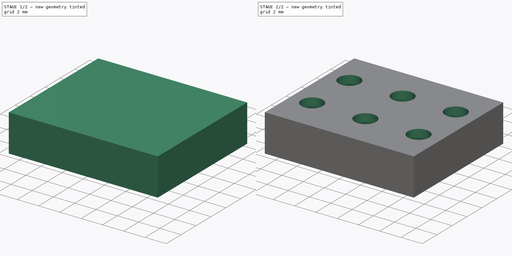
[diagram: build sequence overview — one tinted view per stage of 2, left to right]
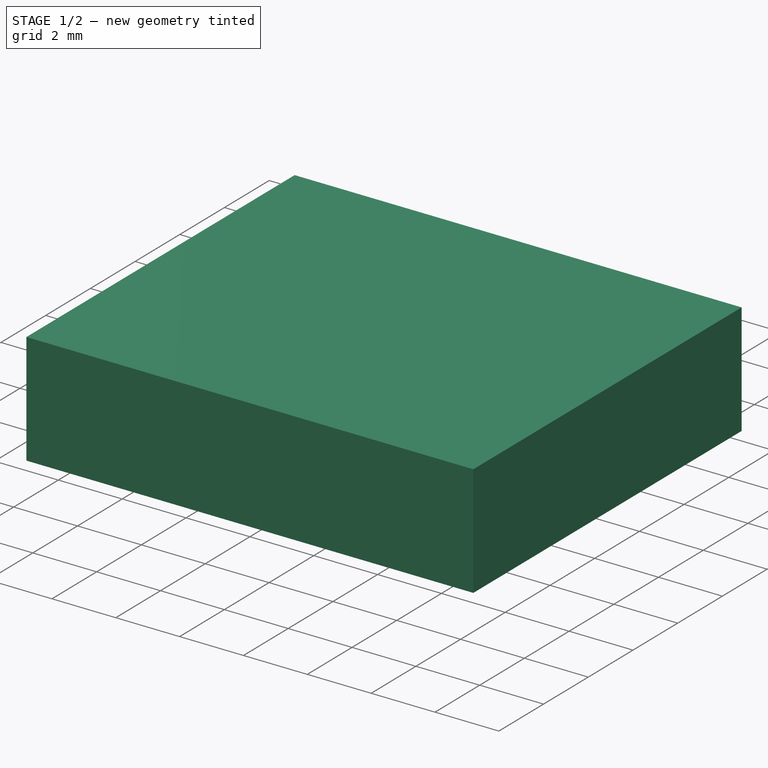
[diagram: stage 1 of 2 — iso view after this stage's code; geometry added in this stage tinted green]
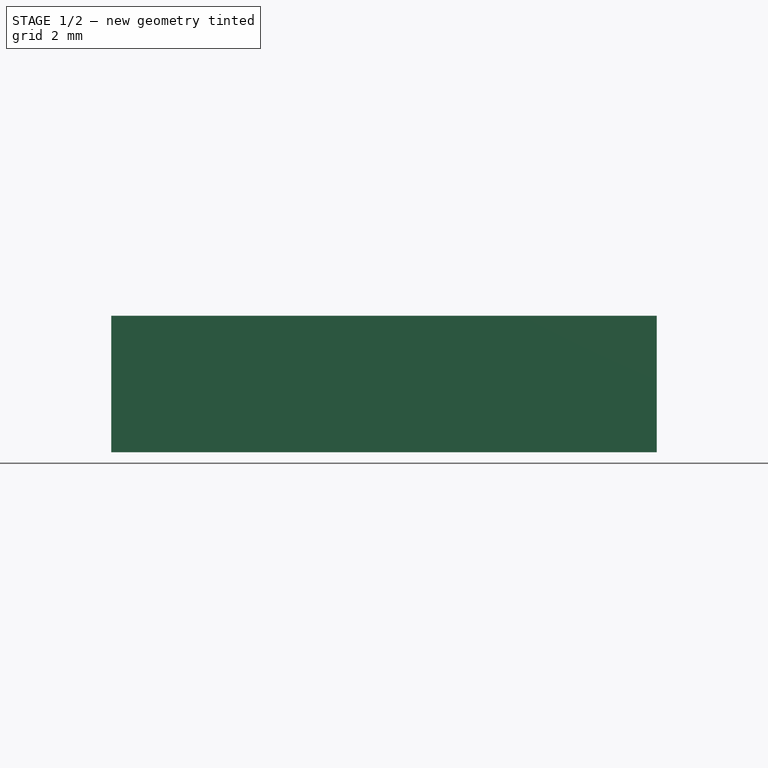
[diagram: stage 1 of 2 — front view after this stage's code; geometry added in this stage tinted green]
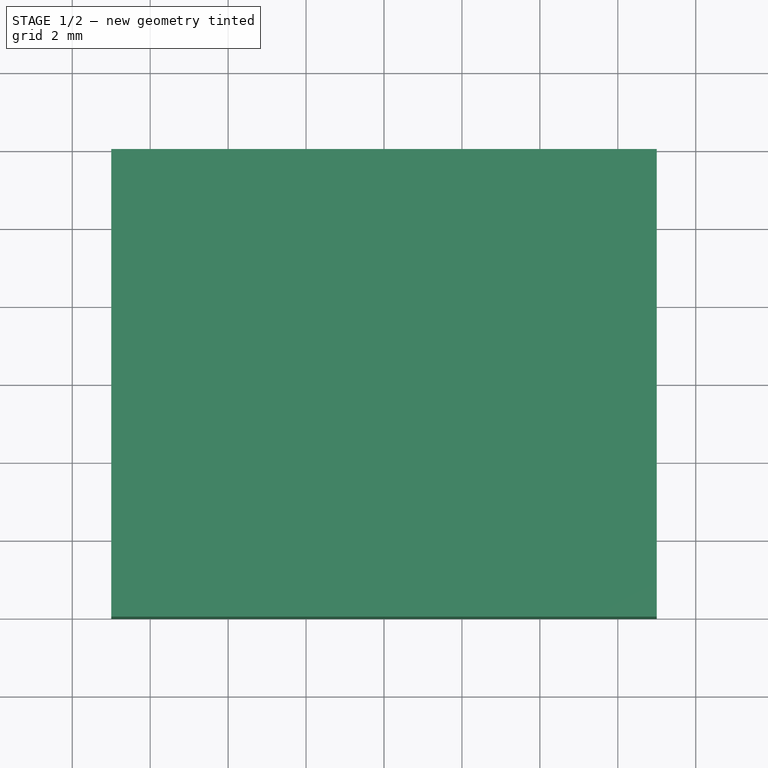
[diagram: stage 1 of 2 — top view after this stage's code; geometry added in this stage tinted green]
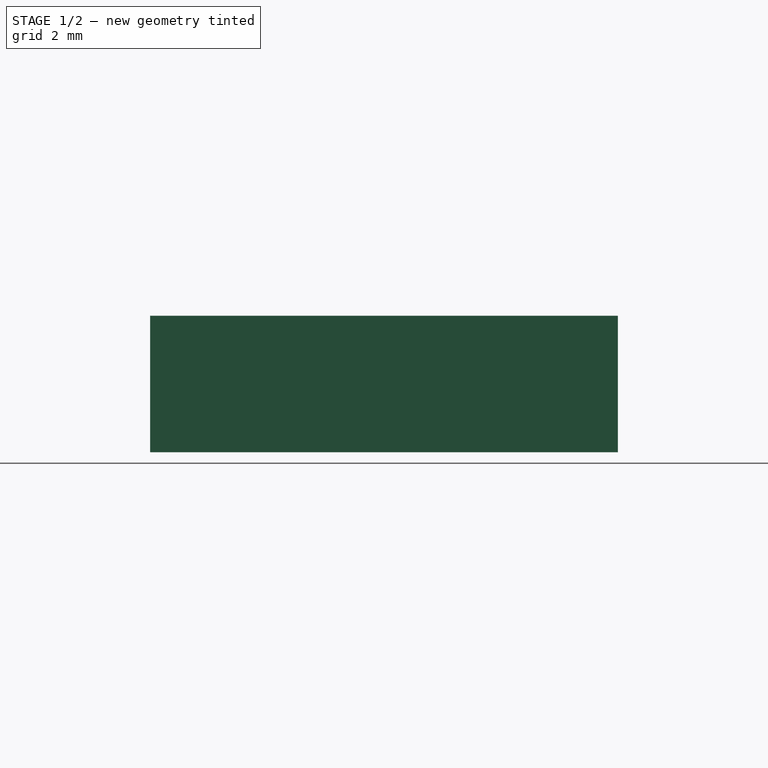
[diagram: stage 1 of 2 — right view after this stage's code; geometry added in this stage tinted green]
FCSTD DOCUMENT  (FreeCAD 0.18R4 (GitTag))
Label: switch spacer
License: All rights reserved
LicenseURL: http://en.wikipedia.org/wiki/All_rights_reserved
objects: Sketcher::SketchObject×3, PartDesign::Hole×2, PartDesign::Pad×1, PartDesign::Pocket×1, PartDesign::Body×1
note: 12 computed .brp shape members not serialized (recipe doc carries the construction recipe); baked Part::Feature solids carry a one-line shape summary decoded from their .brp

FEATURE [Sketcher::SketchObject] Sketch
  MapMode = 5
  Support = -> [XY_Plane]
  sketch-geometry (4):
    g0: LineSegment StartX=-7 StartY=6 StartZ=0 EndX=7 EndY=6 EndZ=0
    g1: LineSegment StartX=7 StartY=6 StartZ=0 EndX=7 EndY=-6 EndZ=0
    g2: LineSegment StartX=7 StartY=-6 StartZ=0 EndX=-7 EndY=-6 EndZ=0
    g3: LineSegment StartX=-7 StartY=-6 StartZ=0 EndX=-7 EndY=6 EndZ=0
  constraints (8):
    c: Coincident(g0,g1)
    c: Coincident(g1,g2)
    c: Coincident(g2,g3)
    c: Coincident(g3,g0)
    c: Horizontal(g0)
    c: Horizontal(g2)
    c: Vertical(g1)
    c: Vertical(g3)
FEATURE [PartDesign::Pad] Pad
  Length = 3.5
  Length2 = 100
  Profile = -> Sketch
  Type = 0
FEATURE [PartDesign::Hole] Hole
  BaseFeature = -> Pad
  Depth = 25
  DepthType = 0
  Diameter = 6
  DrillPoint = 1
  DrillPointAngle = 118
  HoleCutCountersinkAngle = 90
  HoleCutDepth = 0
  HoleCutDiameter = 0
  HoleCutType = 0
  ModelActualThread = false
  Profile = -> Pad [Face6]
  Tapered = false
  TaperedAngle = 90
  ThreadAngle = 0
  ThreadClass = 0
  ThreadCutOffInner = 0
  ThreadCutOffOuter = 0
  ThreadDirection = 0
  ThreadFit = 0
  ThreadPitch = 0
  ThreadSize = 0
  ThreadType = 0
  Threaded = false
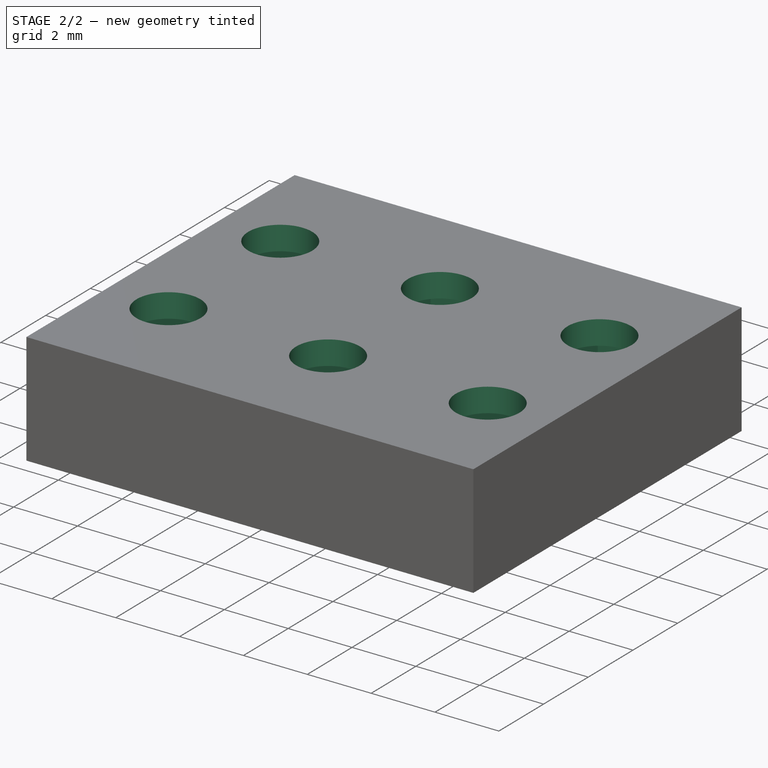
[diagram: stage 2 of 2 — iso view after this stage's code; geometry added in this stage tinted green]
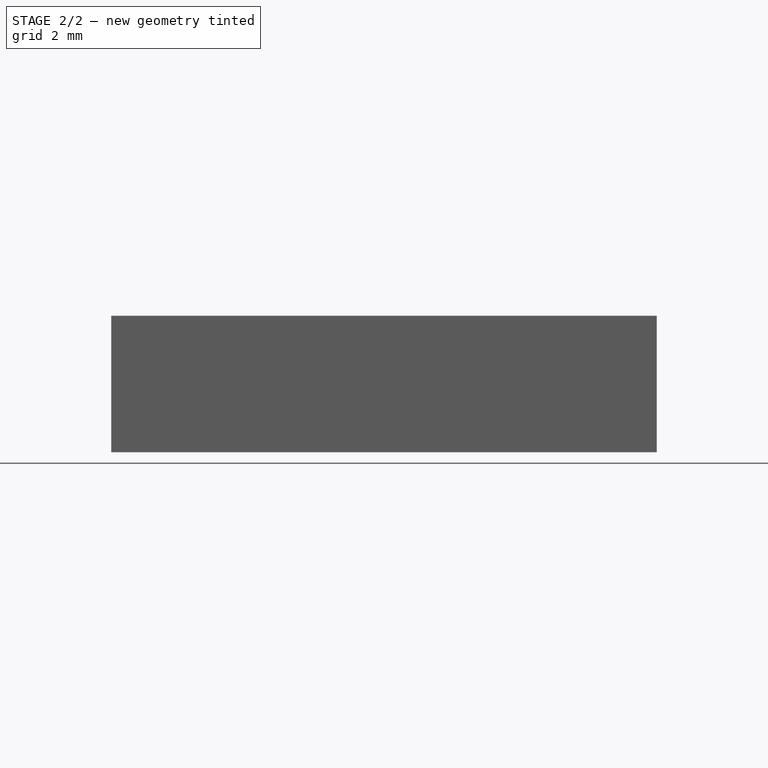
[diagram: stage 2 of 2 — front view after this stage's code; geometry added in this stage tinted green]
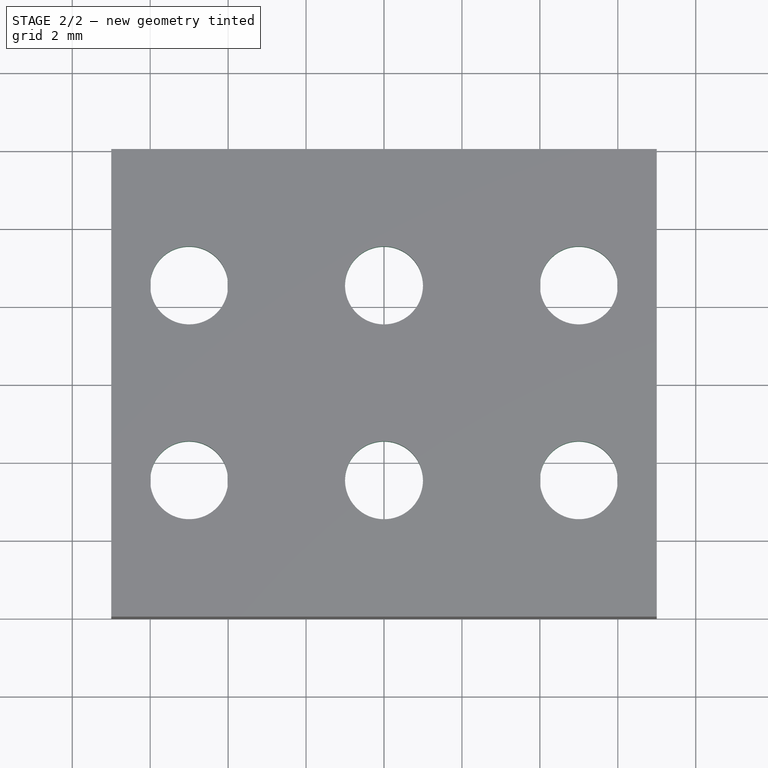
[diagram: stage 2 of 2 — top view after this stage's code; geometry added in this stage tinted green]
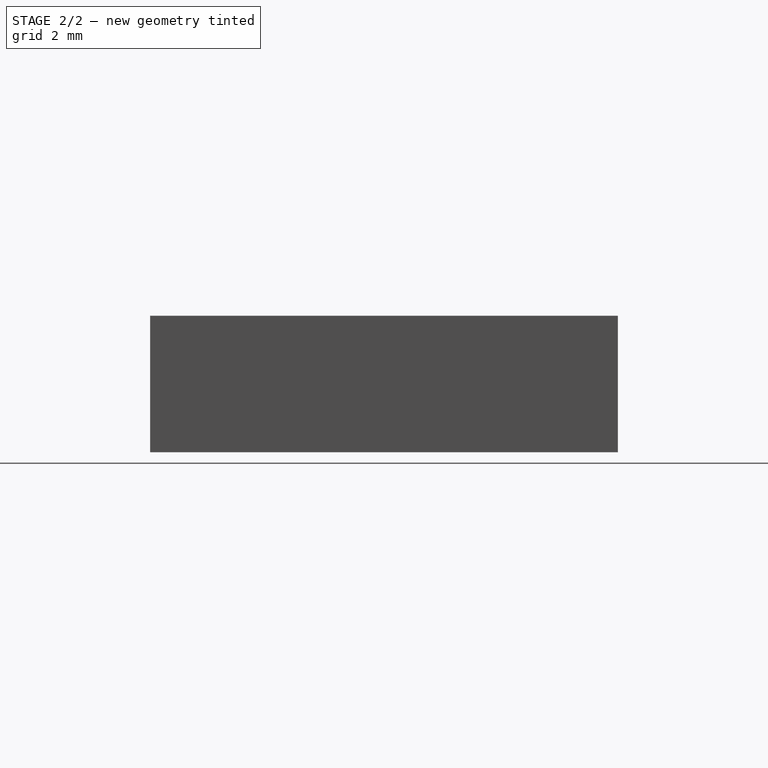
[diagram: stage 2 of 2 — right view after this stage's code; geometry added in this stage tinted green]
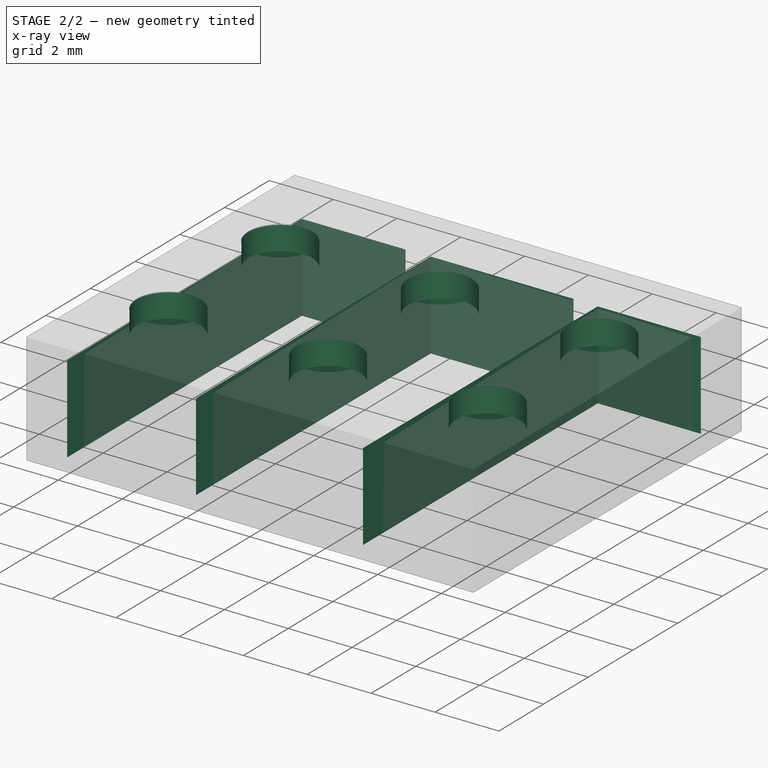
[diagram: stage 2 of 2 — x-ray composite at the iso view; earlier geometry ghosted, this stage's added geometry solid]
FEATURE [Sketcher::SketchObject] Sketch001
  MapMode = 5
  Placement = pos=(0,0,3.5) rot=(0,0,1;0rad)
  Support = -> [Hole]
  sketch-geometry (6):
    g0: Circle CenterX=-5 CenterY=2.5 CenterZ=0 NormalX=0 NormalY=0 NormalZ=1 AngleXU=0 Radius=1
    g1: Circle CenterX=0 CenterY=2.5 CenterZ=0 NormalX=0 NormalY=0 NormalZ=1 AngleXU=0 Radius=1
    g2: Circle CenterX=5 CenterY=2.5 CenterZ=0 NormalX=0 NormalY=0 NormalZ=1 AngleXU=0 Radius=1.00707
    g3: Circle CenterX=5 CenterY=-2.5 CenterZ=0 NormalX=0 NormalY=0 NormalZ=1 AngleXU=0 Radius=1
    g4: Circle CenterX=0 CenterY=-2.5 CenterZ=0 NormalX=0 NormalY=0 NormalZ=1 AngleXU=0 Radius=1
    g5: Circle CenterX=-5 CenterY=-2.5 CenterZ=0 NormalX=0 NormalY=0 NormalZ=1 AngleXU=0 Radius=1
FEATURE [PartDesign::Hole] Hole001
  BaseFeature = -> Hole
  Depth = 25
  DepthType = 1
  Diameter = 2
  DrillPoint = 1
  DrillPointAngle = 118
  HoleCutCountersinkAngle = 90
  HoleCutDepth = 0
  HoleCutDiameter = 0
  HoleCutType = 0
  ModelActualThread = false
  Profile = -> Sketch001
  Tapered = false
  TaperedAngle = 90
  ThreadAngle = 0
  ThreadClass = 0
  ThreadCutOffInner = 0
  ThreadCutOffOuter = 0
  ThreadDirection = 0
  ThreadFit = 0
  ThreadPitch = 0
  ThreadSize = 0
  ThreadType = 0
  Threaded = false
FEATURE [Sketcher::SketchObject] Sketch002
  MapMode = 5
  Placement = pos=(0,0,0) rot=(1,0,0;3.14159rad)
  Support = -> [Hole001]
  sketch-geometry (12):
    g0: LineSegment StartX=-6.25 StartY=5.25 StartZ=0 EndX=-3 EndY=5.25 EndZ=0
    g1: LineSegment StartX=-3 StartY=5.25 StartZ=0 EndX=-3 EndY=-5.25 EndZ=0
    g2: LineSegment StartX=-3 StartY=-5.25 StartZ=0 EndX=-6.25 EndY=-5.25 EndZ=0
    g3: LineSegment StartX=-6.25 StartY=-5.25 StartZ=0 EndX=-6.25 EndY=5.25 EndZ=0
    g4: LineSegment StartX=-2.2279 StartY=5.23101 StartZ=0 EndX=2.25 EndY=5.23101 EndZ=0
    g5: LineSegment StartX=2.25 StartY=5.23101 StartZ=0 EndX=2.25 EndY=-5.26899 EndZ=0
    g6: LineSegment StartX=2.25 StartY=-5.26899 StartZ=0 EndX=-2.2279 EndY=-5.26899 EndZ=0
    g7: LineSegment StartX=-2.2279 StartY=-5.26899 StartZ=0 EndX=-2.2279 EndY=5.23101 EndZ=0
    g8: LineSegment StartX=3.01899 StartY=5.25 StartZ=0 EndX=6.25 EndY=5.25 EndZ=0
    g9: LineSegment StartX=6.25 StartY=5.25 StartZ=0 EndX=6.25 EndY=-5.25 EndZ=0
    g10: LineSegment StartX=6.25 StartY=-5.25 StartZ=0 EndX=3.01899 EndY=-5.25 EndZ=0
    g11: LineSegment StartX=3.01899 StartY=-5.25 StartZ=0 EndX=3.01899 EndY=5.25 EndZ=0
  constraints (24):
    c: Coincident(g0,g1)
    c: Coincident(g1,g2)
    c: Coincident(g2,g3)
    c: Coincident(g3,g0)
    c: Horizontal(g0)
    c: Horizontal(g2)
    c: Vertical(g1)
    c: Vertical(g3)
    c: Coincident(g4,g5)
    c: Coincident(g5,g6)
    c: Coincident(g6,g7)
    c: Coincident(g7,g4)
    c: Horizontal(g4)
    c: Horizontal(g6)
    c: Vertical(g5)
    c: Vertical(g7)
    c: Coincident(g8,g9)
    c: Coincident(g9,g10)
    c: Coincident(g10,g11)
    c: Coincident(g11,g8)
    c: Horizontal(g8)
    c: Horizontal(g10)
    c: Vertical(g9)
    c: Vertical(g11)
FEATURE [PartDesign::Pocket] Pocket
  BaseFeature = -> Hole001
  Length = 2.75
  Length2 = 100
  Profile = -> Sketch002
  Type = 0
FEATURE [PartDesign::Body] Body
  Group = -> [Sketch,Pad,Hole,Sketch001,Hole001,Sketch002,Pocket]
  Origin = -> Origin
  Tip = -> Pocket
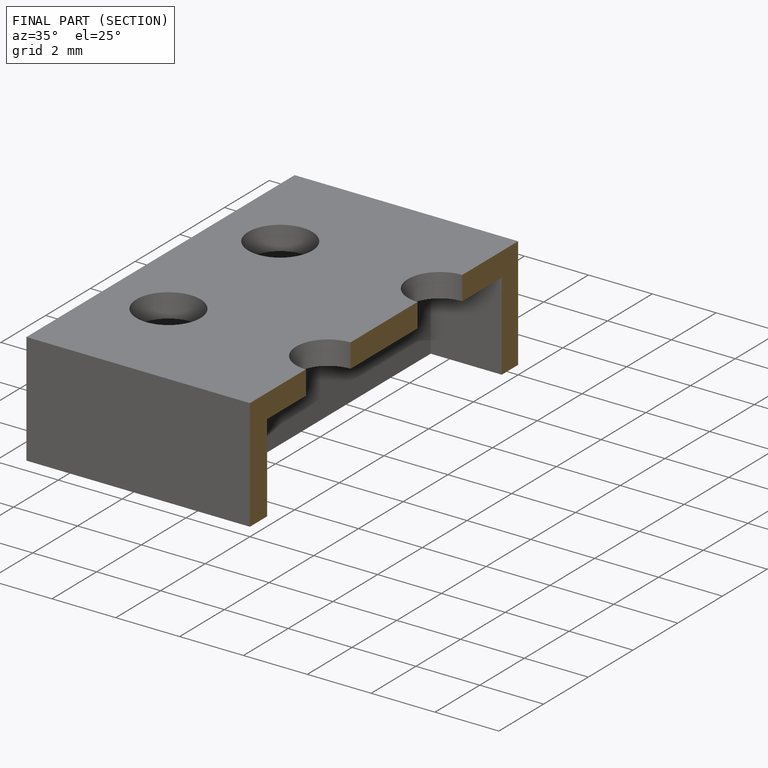
[diagram: finished part — half-section view (interior)]
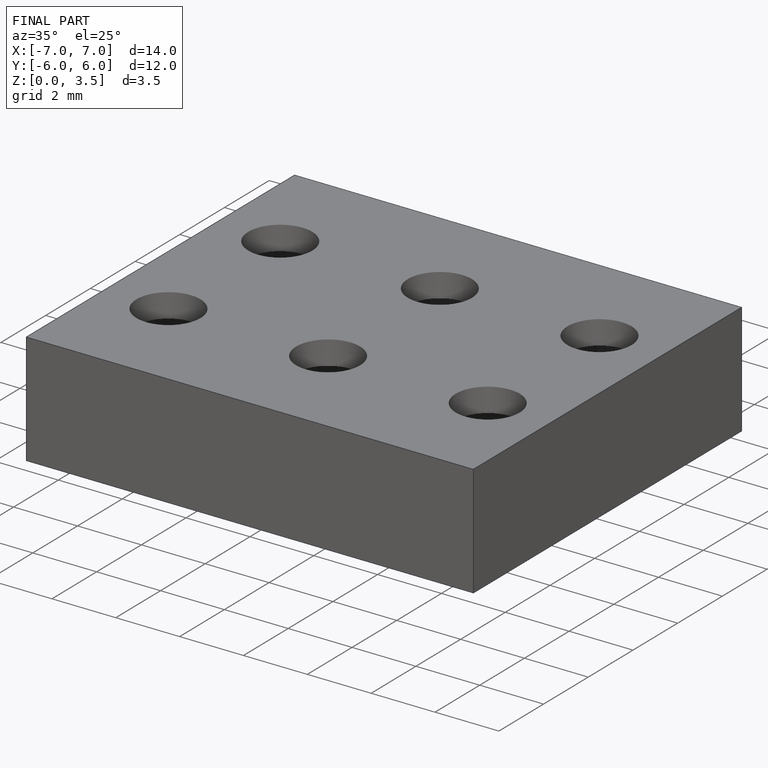
[diagram: finished part — iso view with bounding-box wireframe]
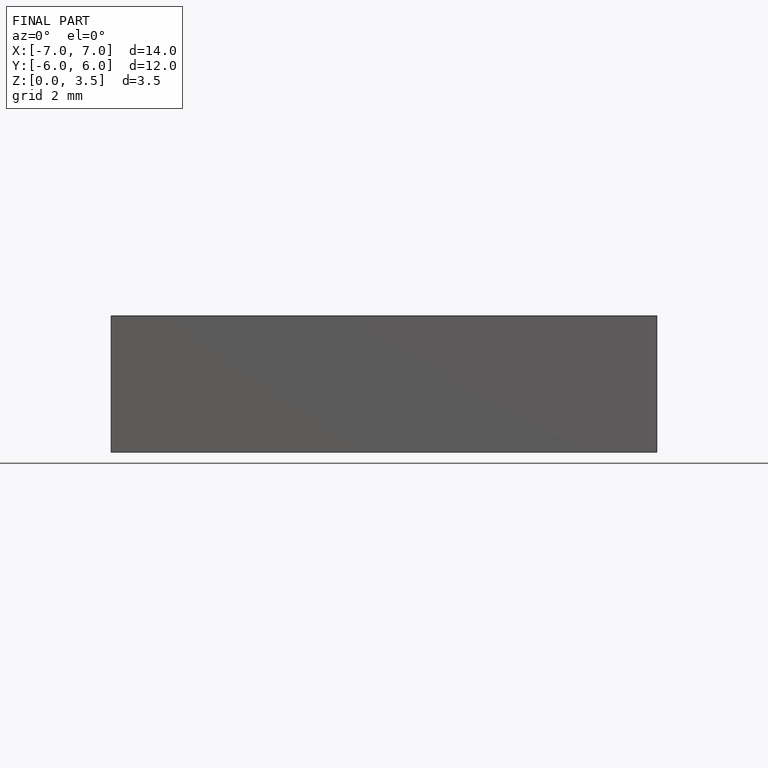
[diagram: finished part — front view with bounding-box wireframe]
